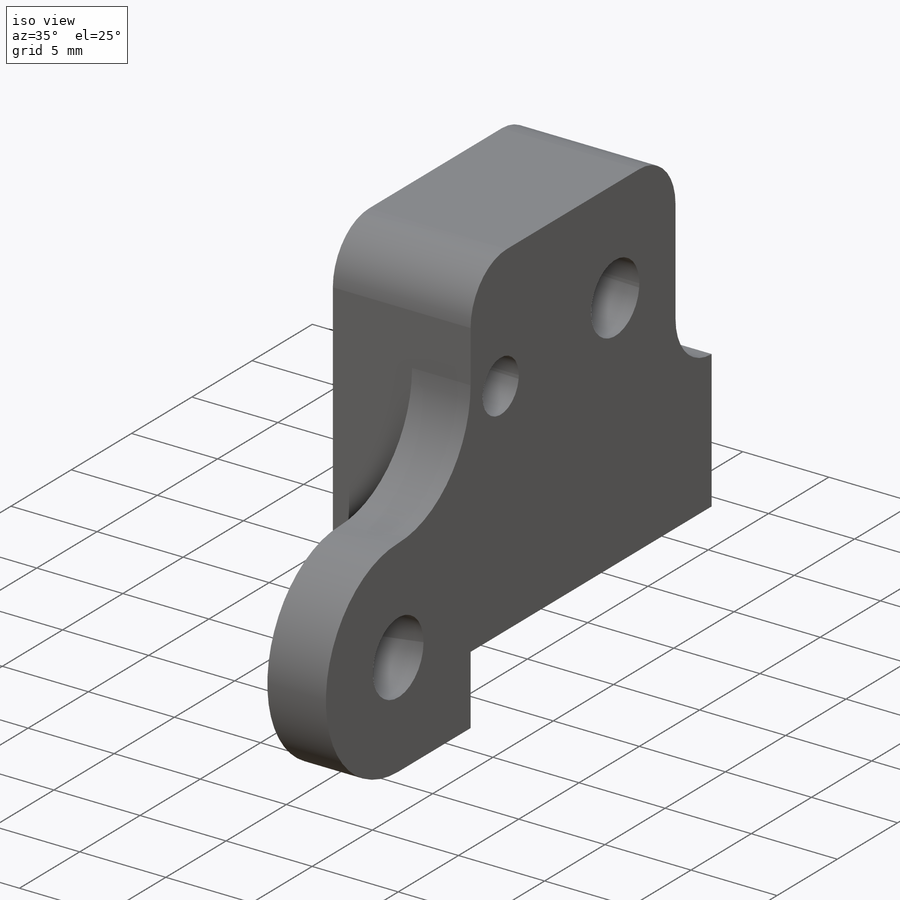
[diagram: iso view]
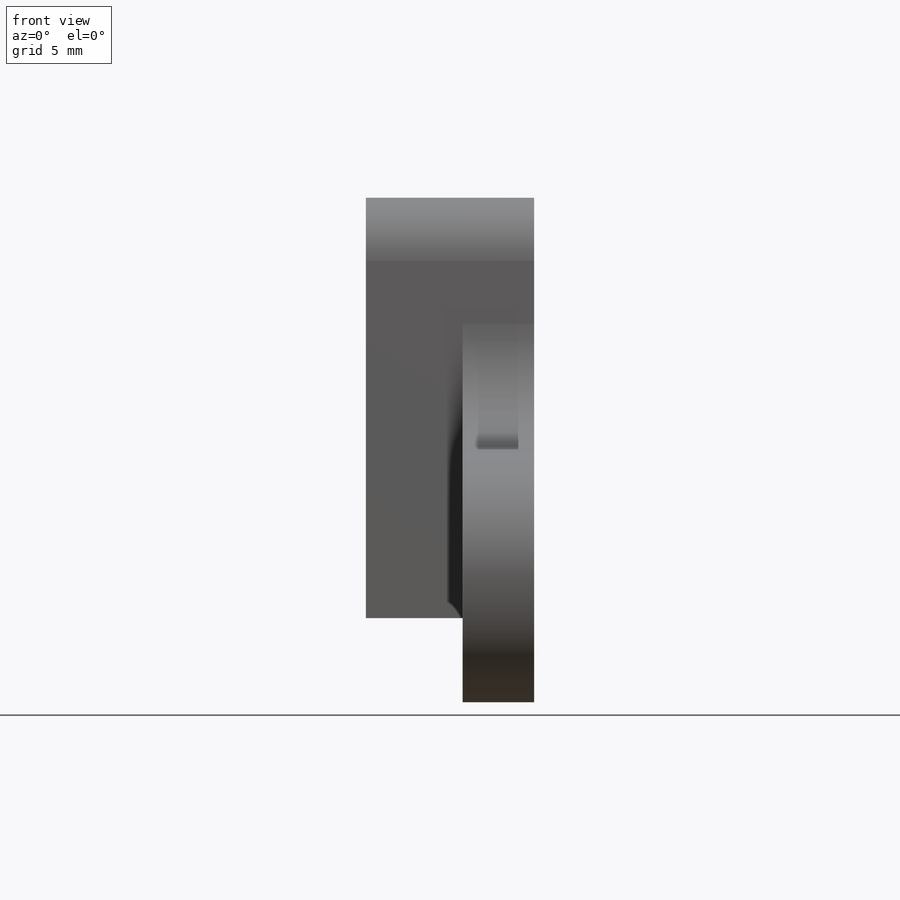
[diagram: front view]
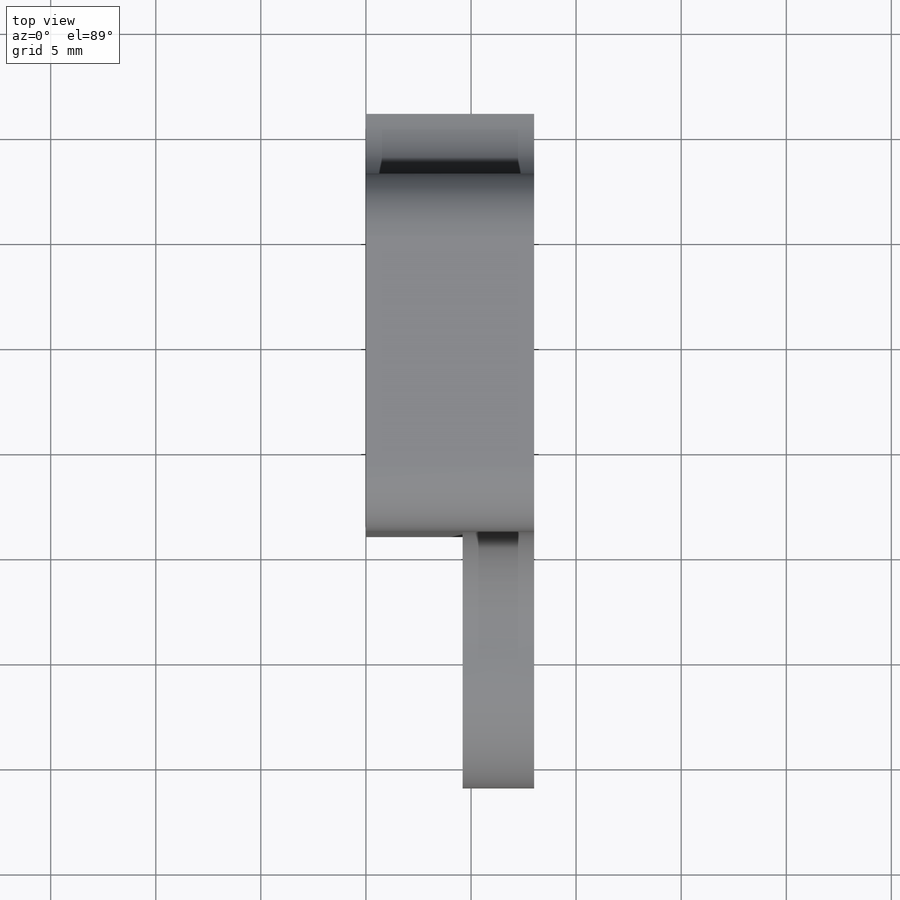
[diagram: top view]
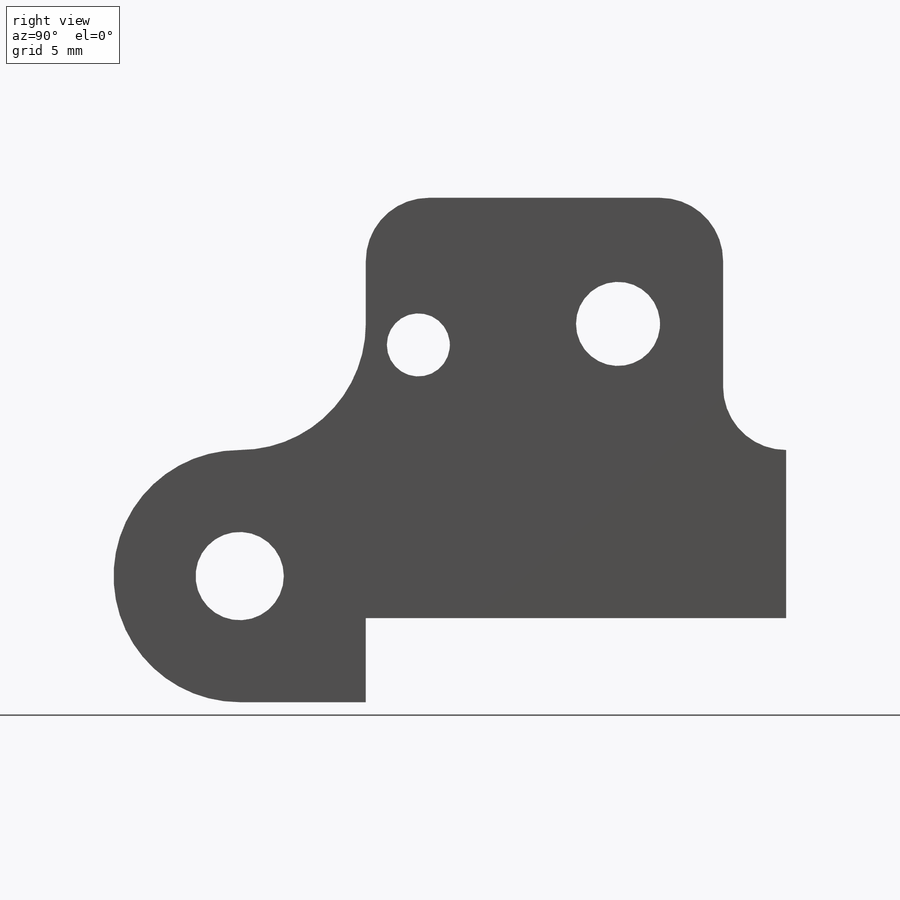
[diagram: right view]
SOLIDWORKS PART (.sldprt)
format: sldprt  version: not decoded by parser v0  size: 258,560 bytes
history: native  units: mm
features: sketch x6, fillet x2, hole x2, material x1, extrude x1, cut_extrude x1 (+11 scaffold rows collapsed)
feature tree (24):
  scaffold x11  (default folders/planes/origin — collapsed)
  material  "Material <not specified>"
  sketch  "Sketch1"  dims[c1.D2=6.0mm c1.D7=3.0mm c1.D8=4.0mm c2.D7=3.0mm c2.D8=4.0mm c2.D1=6.0mm c2.D3=4.0mm c2.D4=8.0mm c2.D5=20.0mm c2.D6=12.0mm c2.D9=2.5mm c2.D10=5.0mm c2.D11=6.0mm c2.D12=7.0mm c2.D13=3.0mm]
  extrude  "Boss-Extrude1"  Depth=8mm
  fillet  "Fillet1"  Radius=3mm
  fillet  "Fillet2"  Radius=6mm
  hole  "Tap Drill for M5x0.8 Tap1"  Diameter=4.2mm Depth=8mm
  sketch  "Sketch3"
  sketch  "Sketch2"  dims[hole-wizard template sketch: 61 standard entries collapsed; hole parameters above]
  hole  "Tap Drill for M3x0.5 Tap1"  Diameter=2.5mm Depth=6mm
  sketch  "Sketch6"  dims[D1=4.0mm D2=4.0mm D3=4.0mm]
  sketch  "Sketch5"  dims[hole-wizard template sketch: 50 standard entries collapsed; hole parameters above]
  sketch  "Sketch7"  dims[D1=3.4mm]
  cut_extrude  "Cut-Extrude1"  [1 undecoded]
decode coverage: 10 of 12 modeling features carry decoded parameters
note: ~ marks probable driven/reference dimensions
note: 1 parameter value undecoded
note: suppression state not decoded; provenance and decode notes live in map.json
